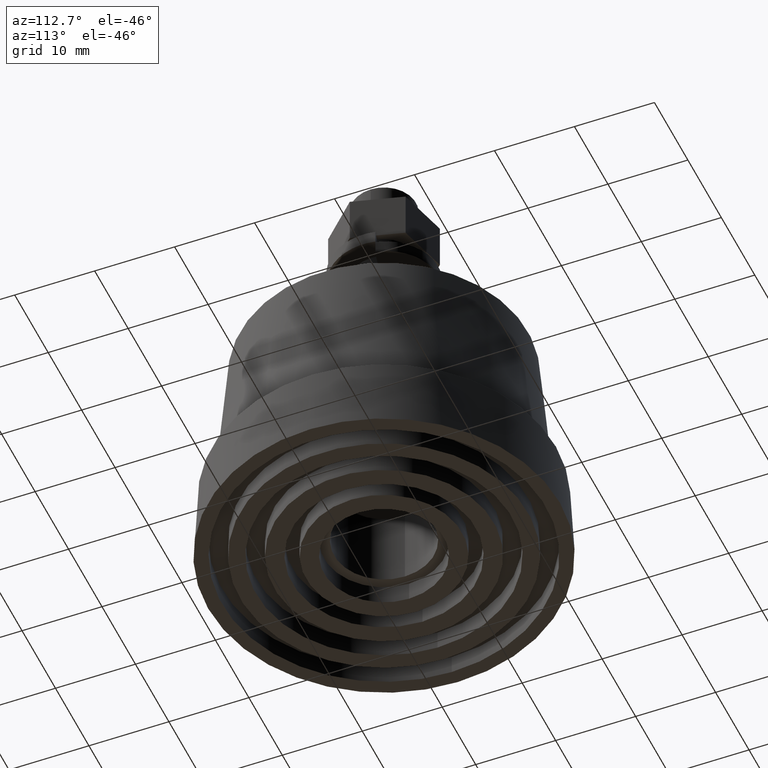
[diagram: clean part render]
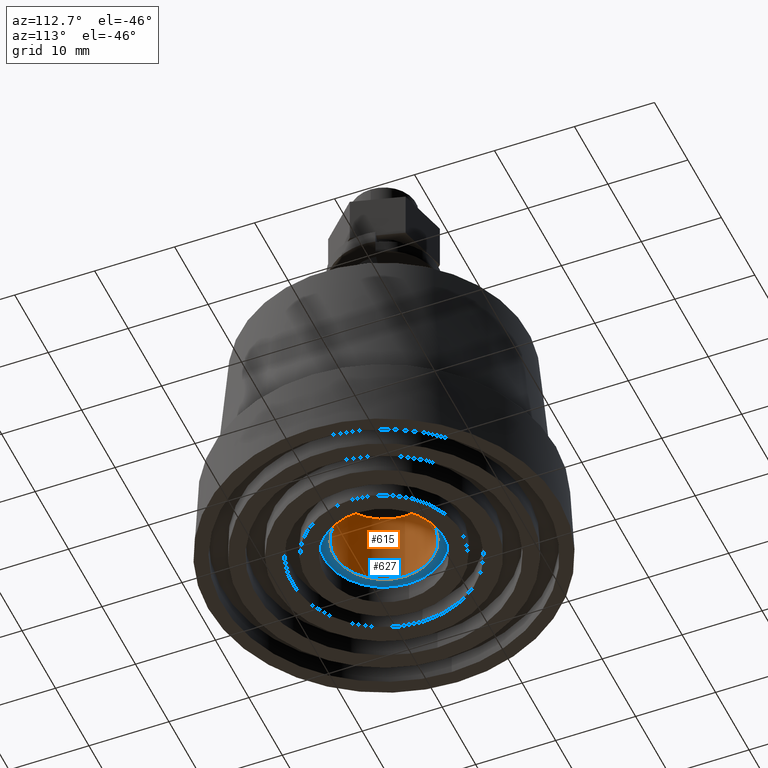
[diagram: same view with the hole feature highlighted: cylindrical wall and planar end face, labeled with their STEP entity ids]
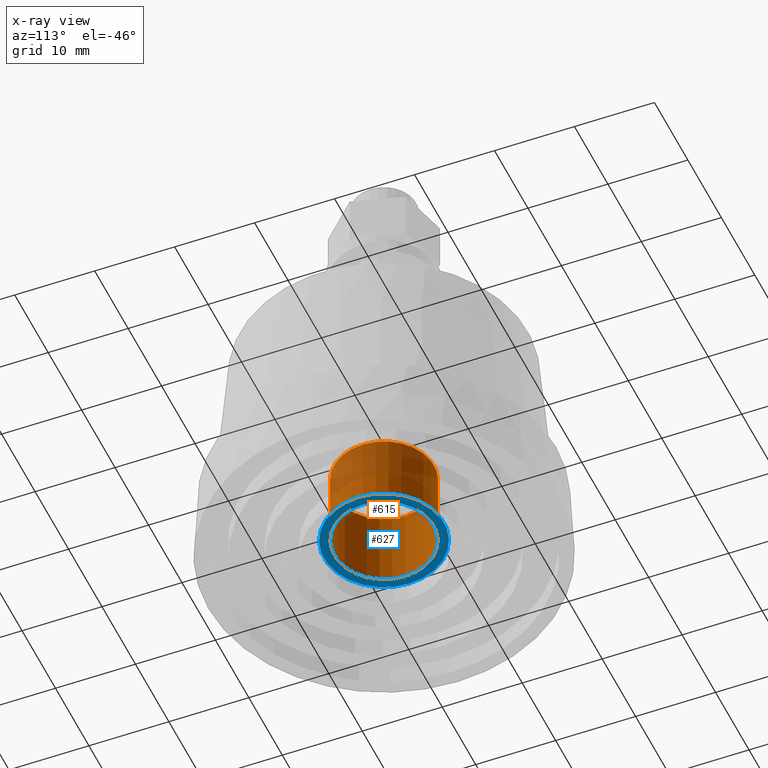
[diagram: x-ray of the same camera — body ghosted, the hole faces saturated]
A machine part, auxiliary view. The highlighted faces form one hole feature of diameter 12.5 mm: the cylindrical wall (entity #615, orange) and its adjacent planar end face (entity #627, blue) — they share a circular edge in the B-rep.
The next image is the same camera in x-ray (body ghosted, the hole faces saturated) — the bore reads through the body.
Wall:
#135=FACE_BOUND('',#234,.T.);
#172=FACE_OUTER_BOUND('',#233,.T.);
#233=EDGE_LOOP('',(#477));
#234=EDGE_LOOP('',(#478));
#309=CIRCLE('',#683,6.25);
#310=CIRCLE('',#684,6.25);
#345=VERTEX_POINT('',#995);
#346=VERTEX_POINT('',#997);
#401=EDGE_CURVE('',#345,#345,#309,.T.);
#402=EDGE_CURVE('',#346,#346,#310,.T.);
#477=ORIENTED_EDGE('',*,*,#401,.T.);
#478=ORIENTED_EDGE('',*,*,#402,.T.);
#592=CYLINDRICAL_SURFACE('',#682,6.25);
#615=ADVANCED_FACE('',(#172,#135),#592,.F.);
#682=AXIS2_PLACEMENT_3D('',#994,#799,#800);
#683=AXIS2_PLACEMENT_3D('',#996,#801,#802);
#684=AXIS2_PLACEMENT_3D('',#998,#803,#804);
#799=DIRECTION('center_axis',(0.,0.,1.));
#800=DIRECTION('ref_axis',(1.,0.,0.));
#801=DIRECTION('center_axis',(0.,0.,-1.));
#802=DIRECTION('ref_axis',(1.,0.,0.));
#803=DIRECTION('center_axis',(0.,0.,1.));
#804=DIRECTION('ref_axis',(1.,0.,0.));
#994=CARTESIAN_POINT('Origin',(0.,0.,0.));
#995=CARTESIAN_POINT('',(-6.25,7.65404249467096E-16,2.5));
#996=CARTESIAN_POINT('Origin',(0.,0.,2.5));
#997=CARTESIAN_POINT('',(-6.25,7.65404249467096E-16,12.5));
#998=CARTESIAN_POINT('Origin',(0.,0.,12.5));
End face:
#107=PLANE('',#710);
#146=FACE_BOUND('',#257,.T.);
#184=FACE_OUTER_BOUND('',#256,.T.);
#256=EDGE_LOOP('',(#500));
#257=EDGE_LOOP('',(#501));
#309=CIRCLE('',#683,6.25);
#324=CIRCLE('',#709,7.5);
#345=VERTEX_POINT('',#995);
#360=VERTEX_POINT('',#1036);
#401=EDGE_CURVE('',#345,#345,#309,.T.);
#416=EDGE_CURVE('',#360,#360,#324,.T.);
#500=ORIENTED_EDGE('',*,*,#416,.F.);
#501=ORIENTED_EDGE('',*,*,#401,.F.);
#627=ADVANCED_FACE('',(#184,#146),#107,.F.);
#683=AXIS2_PLACEMENT_3D('',#996,#801,#802);
#709=AXIS2_PLACEMENT_3D('',#1037,#853,#854);
#710=AXIS2_PLACEMENT_3D('',#1038,#855,#856);
#801=DIRECTION('center_axis',(0.,0.,-1.));
#802=DIRECTION('ref_axis',(1.,0.,0.));
#853=DIRECTION('center_axis',(0.,0.,1.));
#854=DIRECTION('ref_axis',(1.,0.,0.));
#855=DIRECTION('center_axis',(0.,0.,1.));
#856=DIRECTION('ref_axis',(1.,0.,0.));
#995=CARTESIAN_POINT('',(-6.25,7.65404249467096E-16,2.5));
#996=CARTESIAN_POINT('Origin',(0.,0.,2.5));
#1036=CARTESIAN_POINT('',(-7.5,-9.18485099360515E-16,2.5));
#1037=CARTESIAN_POINT('Origin',(0.,0.,2.5));
#1038=CARTESIAN_POINT('Origin',(0.,0.,2.5));